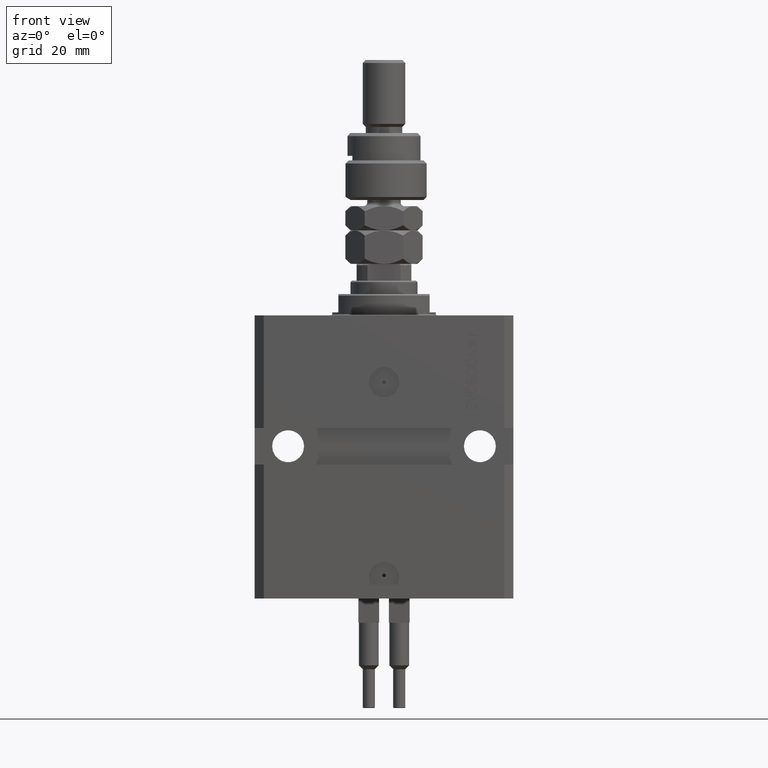
[diagram: clean part render]
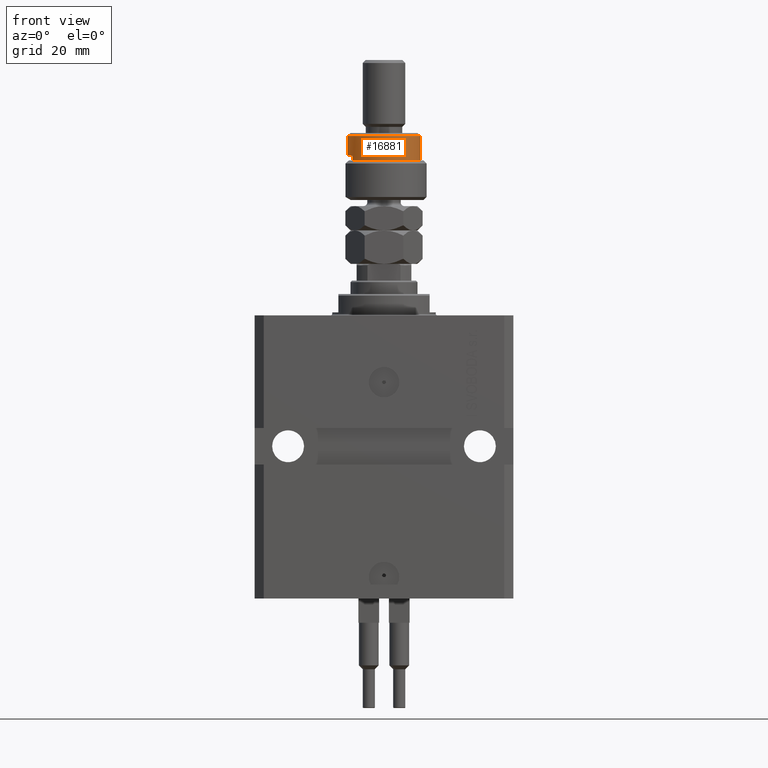
[diagram: same view with one face highlighted and labeled with its STEP entity id]
A machine part, front view. The second image highlights one B-rep face of the part: STEP entity #16881.
In plain terms, the highlighted cylindrical surface (edge-blend (fillet) strip) has radius 12 mm, axis along (-0, -0, -1).
Its self-contained STEP definition (entity closure, byte-faithful):
#721 = VECTOR ( 'NONE', #15680, 1000.000000000000000 ) ;
#1863 = CARTESIAN_POINT ( 'NONE',  ( -10.39230484541326582, -5.999999999999998224, 14.50000000000000000 ) ) ;
#4381 = CARTESIAN_POINT ( 'NONE',  ( 12.00000000000000178, 1.469576158976824144E-15, 13.00000000000000000 ) ) ;
#5543 = ORIENTED_EDGE ( 'NONE', *, *, #17328, .T. ) ;
#6787 = CARTESIAN_POINT ( 'NONE',  ( -12.00000000000000178, 0.000000000000000000, 14.50000000000000000 ) ) ;
#7026 = DIRECTION ( 'NONE',  ( -0.000000000000000000, -0.000000000000000000, -1.000000000000000000 ) ) ;
#8757 = CARTESIAN_POINT ( 'NONE',  ( 12.00000000000000178, 1.469576158976824144E-15, 20.99999999999999645 ) ) ;
#8767 = EDGE_CURVE ( 'NONE', #21921, #26130, #17297, .T. ) ;
#9514 = DIRECTION ( 'NONE',  ( 0.000000000000000000, 0.000000000000000000, -1.000000000000000000 ) ) ;
#10036 = EDGE_CURVE ( 'NONE', #21921, #31488, #44947, .T. ) ;
#12108 = DIRECTION ( 'NONE',  ( 1.000000000000000000, 0.000000000000000000, 0.000000000000000000 ) ) ;
#13095 = CARTESIAN_POINT ( 'NONE',  ( -10.39230484541326760, -6.000000000000000000, 13.00000000000000000 ) ) ;
#14802 = DIRECTION ( 'NONE',  ( 0.000000000000000000, 0.000000000000000000, -1.000000000000000000 ) ) ;
#15061 = CARTESIAN_POINT ( 'NONE',  ( 0.000000000000000000, 0.000000000000000000, 20.99999999999999645 ) ) ;
#15680 = DIRECTION ( 'NONE',  ( -0.000000000000000000, -0.000000000000000000, -1.000000000000000000 ) ) ;
#16159 = CARTESIAN_POINT ( 'NONE',  ( -12.00000000000000178, 0.000000000000000000, 20.99999999999999645 ) ) ;
#16881 = ADVANCED_FACE ( 'NONE', ( #38916 ), #42045, .T. ) ;
#17039 = DIRECTION ( 'NONE',  ( -0.000000000000000000, -0.000000000000000000, -1.000000000000000000 ) ) ;
#17297 = LINE ( 'NONE', #28235, #41621 ) ;
#17328 = EDGE_CURVE ( 'NONE', #26551, #26130, #35205, .T. ) ;
#18412 = VERTEX_POINT ( 'NONE', #1863 ) ;
#20546 = DIRECTION ( 'NONE',  ( -0.000000000000000000, -0.000000000000000000, -1.000000000000000000 ) ) ;
#21582 = EDGE_CURVE ( 'NONE', #18412, #26551, #44159, .T. ) ;
#21921 = VERTEX_POINT ( 'NONE', #8757 ) ;
#22845 = DIRECTION ( 'NONE',  ( -1.000000000000000000, 0.000000000000000000, 0.000000000000000000 ) ) ;
#23541 = AXIS2_PLACEMENT_3D ( 'NONE', #30895, #7026, #22845 ) ;
#25090 = EDGE_CURVE ( 'NONE', #18412, #32729, #35470, .T. ) ;
#25250 = AXIS2_PLACEMENT_3D ( 'NONE', #31590, #35466, #12108 ) ;
#25349 = DIRECTION ( 'NONE',  ( -1.000000000000000000, 0.000000000000000000, 0.000000000000000000 ) ) ;
#26130 = VERTEX_POINT ( 'NONE', #4381 ) ;
#26551 = VERTEX_POINT ( 'NONE', #13095 ) ;
#28176 = ORIENTED_EDGE ( 'NONE', *, *, #8767, .F. ) ;
#28235 = CARTESIAN_POINT ( 'NONE',  ( 12.00000000000000178, 1.469576158976824144E-15, 22.00000000000000000 ) ) ;
#28406 = AXIS2_PLACEMENT_3D ( 'NONE', #15061, #14802, #30905 ) ;
#28784 = ORIENTED_EDGE ( 'NONE', *, *, #21582, .T. ) ;
#29184 = ORIENTED_EDGE ( 'NONE', *, *, #25090, .F. ) ;
#30895 = CARTESIAN_POINT ( 'NONE',  ( 0.000000000000000000, 0.000000000000000000, 22.00000000000000000 ) ) ;
#30905 = DIRECTION ( 'NONE',  ( 1.000000000000000000, 0.000000000000000000, 0.000000000000000000 ) ) ;
#31488 = VERTEX_POINT ( 'NONE', #16159 ) ;
#31590 = CARTESIAN_POINT ( 'NONE',  ( 0.000000000000000000, 0.000000000000000000, 13.00000000000000000 ) ) ;
#32729 = VERTEX_POINT ( 'NONE', #6787 ) ;
#33121 = CARTESIAN_POINT ( 'NONE',  ( 0.000000000000000000, 0.000000000000000000, 14.50000000000000000 ) ) ;
#34897 = LINE ( 'NONE', #50706, #721 ) ;
#35205 = CIRCLE ( 'NONE', #25250, 12.00000000000000178 ) ;
#35466 = DIRECTION ( 'NONE',  ( 0.000000000000000000, 0.000000000000000000, 1.000000000000000000 ) ) ;
#35470 = CIRCLE ( 'NONE', #40427, 12.00000000000000178 ) ;
#36121 = CARTESIAN_POINT ( 'NONE',  ( -10.39230484541326760, -6.000000000000000000, 22.00000000000000000 ) ) ;
#38384 = EDGE_CURVE ( 'NONE', #31488, #32729, #34897, .T. ) ;
#38916 = FACE_OUTER_BOUND ( 'NONE', #49920, .T. ) ;
#39091 = ORIENTED_EDGE ( 'NONE', *, *, #38384, .T. ) ;
#40427 = AXIS2_PLACEMENT_3D ( 'NONE', #33121, #9514, #25349 ) ;
#41621 = VECTOR ( 'NONE', #17039, 1000.000000000000000 ) ;
#42045 = CYLINDRICAL_SURFACE ( 'NONE', #23541, 12.00000000000000178 ) ;
#44159 = LINE ( 'NONE', #36121, #50229 ) ;
#44947 = CIRCLE ( 'NONE', #28406, 12.00000000000000178 ) ;
#46553 = ORIENTED_EDGE ( 'NONE', *, *, #10036, .T. ) ;
#49920 = EDGE_LOOP ( 'NONE', ( #28176, #46553, #39091, #29184, #28784, #5543 ) ) ;
#50229 = VECTOR ( 'NONE', #20546, 1000.000000000000000 ) ;
#50706 = CARTESIAN_POINT ( 'NONE',  ( -12.00000000000000178, 0.000000000000000000, 22.00000000000000000 ) ) ;